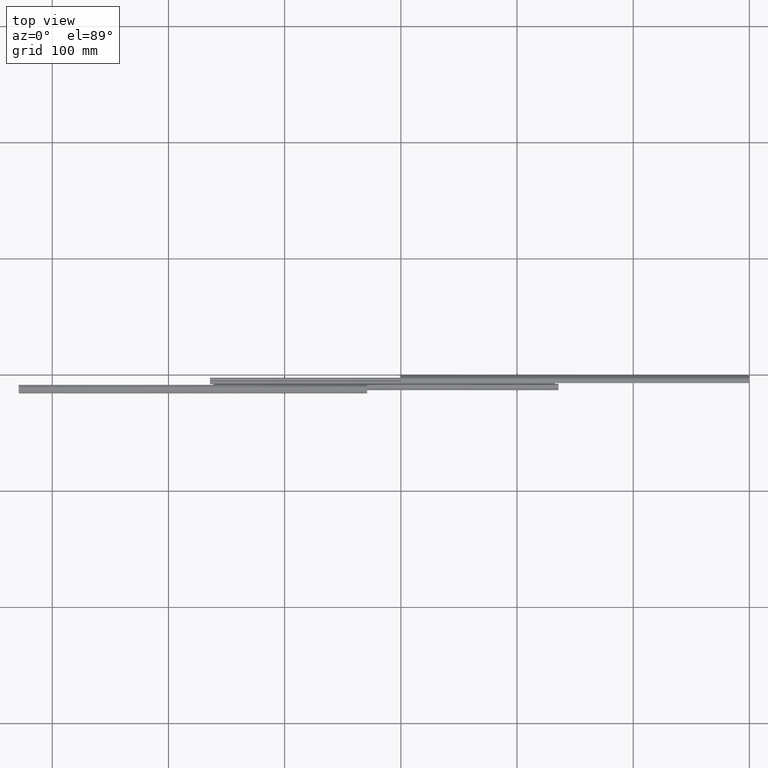
[diagram: clean part render]
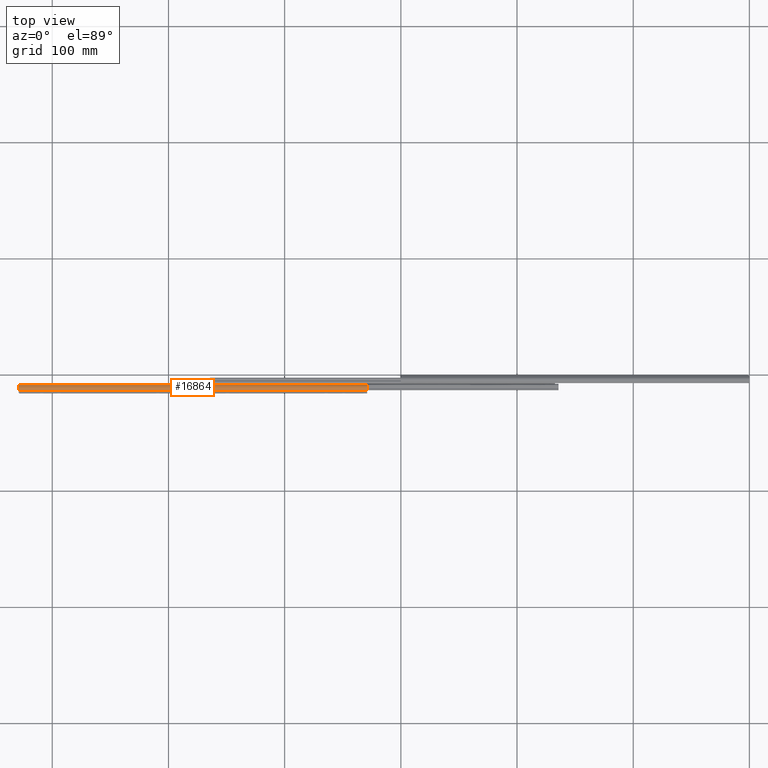
[diagram: same view with one face highlighted and labeled with its STEP entity id]
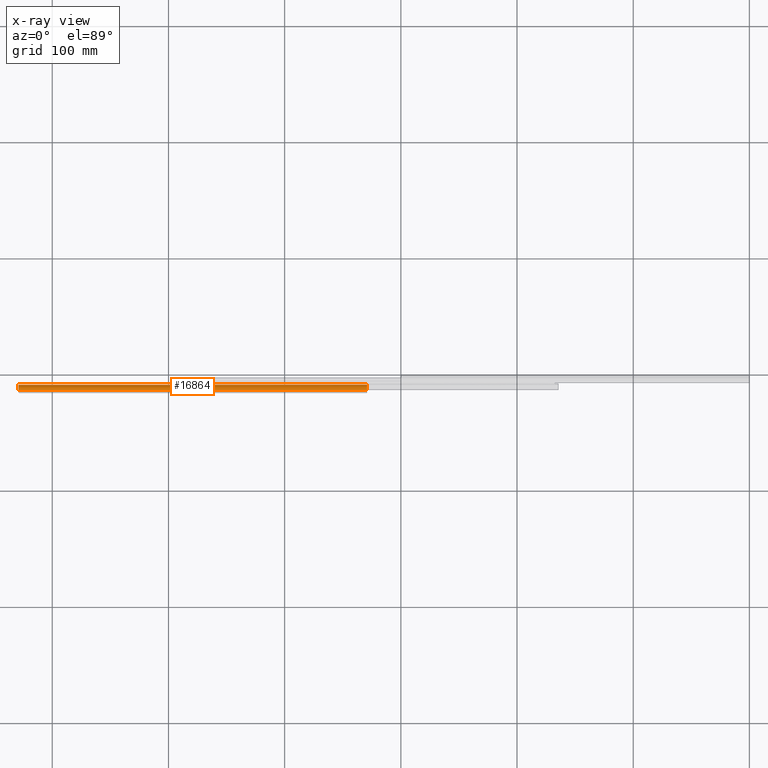
[diagram: x-ray of the same camera — body ghosted, the highlighted face saturated]
A machine part, top view. The second image highlights one B-rep face of the part: STEP entity #16864.
The next image is the same camera in x-ray: the body ghosted, the highlighted face saturated — about 0% of this face is hidden behind the body in this view.
In plain terms, the highlighted face is a freeform B-spline surface patch.
Its self-contained STEP definition (entity closure, byte-faithful):
#14993=CARTESIAN_POINT('',(300.0,-6.945557355833350,8.728427000000000));
#14994=VERTEX_POINT('',#14993);
#15000=CARTESIAN_POINT('',(299.978470017580490,-7.078071239486509,8.522037986978859));
#15001=VERTEX_POINT('',#15000);
#15002=CARTESIAN_POINT('',(300.0,-6.945557355833300,8.728427000000000));
#15003=CARTESIAN_POINT('',(300.0,-6.992917200193246,8.660929247621503));
#15004=CARTESIAN_POINT('',(299.993242560336910,-7.037063546604346,8.592073159680133));
#15005=CARTESIAN_POINT('',(299.978470017580490,-7.078071239486509,8.522037986978859));
#15006=QUASI_UNIFORM_CURVE('',3,(#15002,#15003,#15004,#15005),.UNSPECIFIED.,.F.,.U.);
#15007=EDGE_CURVE('',#14994,#15001,#15006,.T.);
#15489=CARTESIAN_POINT('',(0.0,-7.078071239486619,8.522037986978919));
#15490=VERTEX_POINT('',#15489);
#15496=CARTESIAN_POINT('',(0.0,-2.466980046918095,9.201560556579119));
#15497=VERTEX_POINT('',#15496);
#15498=CARTESIAN_POINT('',(0.0,-2.466980046918096,9.201560556579119));
#15499=CARTESIAN_POINT('',(0.0,-3.517366435705751,10.177073308125911));
#15500=CARTESIAN_POINT('',(0.0,-4.935554769061140,9.968079180659549));
#15501=CARTESIAN_POINT('',(0.0,-6.353743102416530,9.759085053193189));
#15502=CARTESIAN_POINT('',(0.0,-7.078071239486623,8.522037986978921));
#15510=(BOUNDED_CURVE()B_SPLINE_CURVE(2,(#15498,#15499,#15500,#15501,#15502),.UNSPECIFIED.,.F.,.U.)B_SPLINE_CURVE_WITH_KNOTS((3,2,3),(0.0,0.500000000000000,1.0),.UNSPECIFIED.)CURVE()GEOMETRIC_REPRESENTATION_ITEM()RATIONAL_B_SPLINE_CURVE((1.0,0.901581321800918,1.0,0.901581321800918,1.0))REPRESENTATION_ITEM(''));
#15511=EDGE_CURVE('',#15497,#15490,#15510,.T.);
#16753=CARTESIAN_POINT('',(300.0,-2.466980046918005,9.201560556579020));
#16754=VERTEX_POINT('',#16753);
#16755=CARTESIAN_POINT('',(300.0,-2.466980046918005,9.201560556579020));
#16756=CARTESIAN_POINT('',(300.0,-3.462608644127085,10.126218761168957));
#16757=CARTESIAN_POINT('',(300.0,-4.813864011567887,9.983467120693515));
#16758=CARTESIAN_POINT('',(300.0,-6.165119379008688,9.840715480218075));
#16759=CARTESIAN_POINT('',(300.0,-6.945557355833357,8.728427000000005));
#16767=(BOUNDED_CURVE()B_SPLINE_CURVE(2,(#16755,#16756,#16757,#16758,#16759),.UNSPECIFIED.,.F.,.U.)B_SPLINE_CURVE_WITH_KNOTS((3,2,3),(0.0,0.500000000000000,1.0),.UNSPECIFIED.)CURVE()GEOMETRIC_REPRESENTATION_ITEM()RATIONAL_B_SPLINE_CURVE((1.0,0.910272297567768,1.0,0.910272297567768,1.0))REPRESENTATION_ITEM(''));
#16768=EDGE_CURVE('',#16754,#14994,#16767,.T.);
#16831=CARTESIAN_POINT('',(300.0,-2.466980046918005,9.201560556579020));
#16832=CARTESIAN_POINT('',(0.0,-2.466980046918095,9.201560556579119));
#16833=QUASI_UNIFORM_CURVE('',1,(#16831,#16832),.UNSPECIFIED.,.F.,.U.);
#16834=EDGE_CURVE('',#16754,#15497,#16833,.T.);
#16839=CARTESIAN_POINT('',(307.500000000000110,-2.393046872449931,9.130495459935300));
#16840=CARTESIAN_POINT('',(-7.687500000000000,-2.393046872449931,9.130495459935300));
#16841=CARTESIAN_POINT('',(307.500000000000170,-5.358479045898496,12.080467124452287));
#16842=CARTESIAN_POINT('',(-7.687499999999999,-5.358479045898496,12.080467124452287));
#16843=CARTESIAN_POINT('',(307.500000000000060,-7.186944746307169,8.318441874775456));
#16844=CARTESIAN_POINT('',(-7.687500000000000,-7.186944746307169,8.318441874775456));
#16852=(BOUNDED_SURFACE()B_SPLINE_SURFACE(1,2,((#16839,#16841,#16843),(#16840,#16842,#16844)),.UNSPECIFIED.,.F.,.F.,.U.)B_SPLINE_SURFACE_WITH_KNOTS((2,2),(3,3),(0.0,315.187500000000110),(0.0,6.149971177053697),.UNSPECIFIED.)GEOMETRIC_REPRESENTATION_ITEM()RATIONAL_B_SPLINE_SURFACE(((1.0,0.581021946329816,0.999362504122286),(1.0,0.581021946329816,0.999362504122286)))REPRESENTATION_ITEM('')SURFACE());
#16853=ORIENTED_EDGE('',*,*,#15007,.F.);
#16854=ORIENTED_EDGE('',*,*,#16768,.F.);
#16855=ORIENTED_EDGE('',*,*,#16834,.T.);
#16856=ORIENTED_EDGE('',*,*,#15511,.T.);
#16857=CARTESIAN_POINT('',(299.978470017580490,-7.078071239486509,8.522037986978859));
#16858=CARTESIAN_POINT('',(0.0,-7.078071239486619,8.522037986978919));
#16859=QUASI_UNIFORM_CURVE('',1,(#16857,#16858),.UNSPECIFIED.,.F.,.U.);
#16860=EDGE_CURVE('',#15001,#15490,#16859,.T.);
#16861=ORIENTED_EDGE('',*,*,#16860,.F.);
#16862=EDGE_LOOP('',(#16853,#16854,#16855,#16856,#16861));
#16863=FACE_OUTER_BOUND('',#16862,.T.);
#16864=ADVANCED_FACE('',(#16863),#16852,.T.);